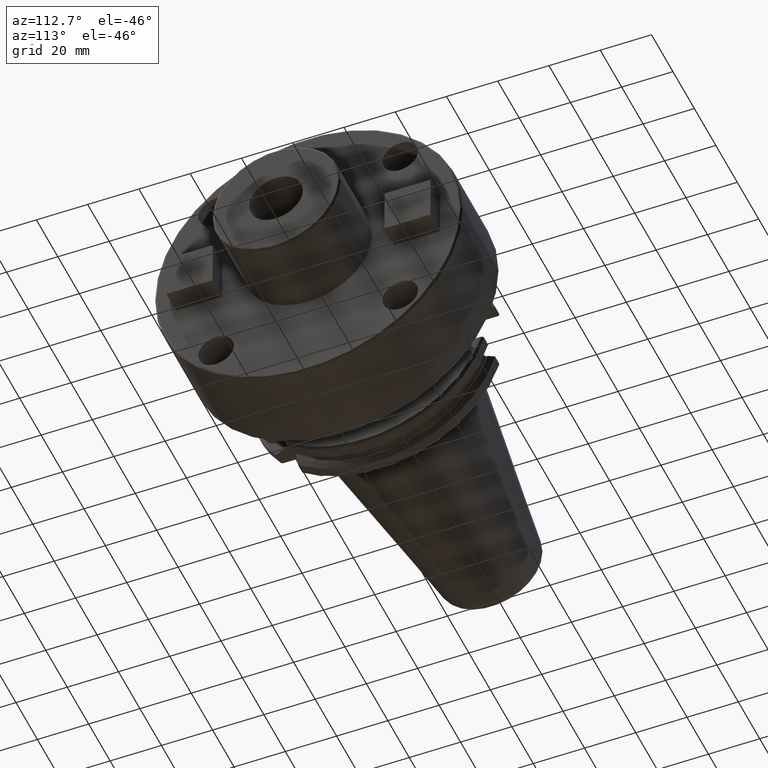
[diagram: clean part render]
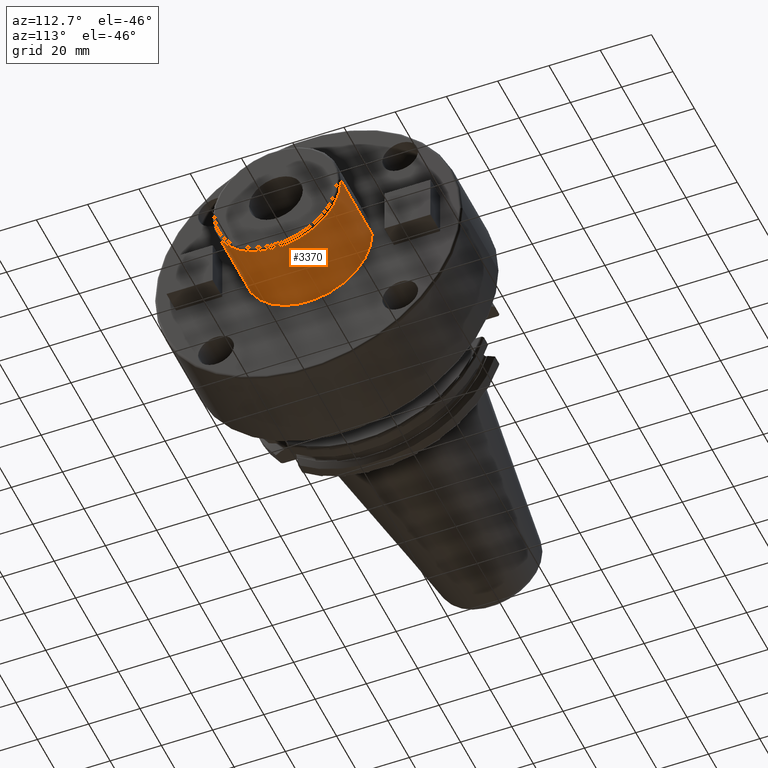
[diagram: same view with one face highlighted and labeled with its STEP entity id]
A machine part, auxiliary view. The second image highlights one B-rep face of the part: STEP entity #3370.
In plain terms, the highlighted cylindrical surface (partial cylindrical patch) has radius 25 mm, axis along (1, 0, 0).
Its self-contained STEP definition (entity closure, byte-faithful):
#1204=CARTESIAN_POINT('',(7.E1,0.E0,0.E0));
#1205=DIRECTION('',(-1.E0,0.E0,0.E0));
#1206=DIRECTION('',(0.E0,1.E0,0.E0));
#1207=AXIS2_PLACEMENT_3D('',#1204,#1205,#1206);
#1306=CARTESIAN_POINT('',(9.9E1,0.E0,0.E0));
#1307=DIRECTION('',(-1.E0,0.E0,0.E0));
#1308=DIRECTION('',(0.E0,1.E0,0.E0));
#1309=AXIS2_PLACEMENT_3D('',#1306,#1307,#1308);
#1311=DIRECTION('',(-1.E0,0.E0,4.938447581544E-14));
#1312=VECTOR('',#1311,2.9E1);
#1313=CARTESIAN_POINT('',(9.9E1,2.5E1,-1.430108720649E-12));
#1314=LINE('',#1313,#1312);
#1315=DIRECTION('',(-1.E0,0.E0,-4.974091809119E-14));
#1316=VECTOR('',#1315,2.9E1);
#1317=CARTESIAN_POINT('',(9.9E1,-2.5E1,1.440445546646E-12));
#1318=LINE('',#1317,#1316);
#1942=CARTESIAN_POINT('',(7.E1,2.5E1,0.E0));
#1943=CARTESIAN_POINT('',(7.E1,-2.5E1,0.E0));
#1944=VERTEX_POINT('',#1942);
#1945=VERTEX_POINT('',#1943);
#1964=CARTESIAN_POINT('',(9.9E1,2.5E1,0.E0));
#1965=CARTESIAN_POINT('',(9.9E1,-2.5E1,0.E0));
#1966=VERTEX_POINT('',#1964);
#1967=VERTEX_POINT('',#1965);
#3359=CARTESIAN_POINT('',(1.50025E1,0.E0,0.E0));
#3360=DIRECTION('',(1.E0,0.E0,0.E0));
#3361=DIRECTION('',(0.E0,-1.E0,0.E0));
#3362=AXIS2_PLACEMENT_3D('',#3359,#3360,#3361);
#3363=CYLINDRICAL_SURFACE('',#3362,2.5E1);
#3364=ORIENTED_EDGE('',*,*,#3350,.F.);
#3365=ORIENTED_EDGE('',*,*,#3325,.T.);
#3366=ORIENTED_EDGE('',*,*,#3266,.T.);
#3367=ORIENTED_EDGE('',*,*,#3322,.F.);
#3368=EDGE_LOOP('',(#3364,#3365,#3366,#3367));
#3369=FACE_OUTER_BOUND('',#3368,.F.);
#3370=ADVANCED_FACE('',(#3369),#3363,.T.);
#1208=CIRCLE('',#1207,2.5E1);
#1310=CIRCLE('',#1309,2.5E1);
#3266=EDGE_CURVE('',#1944,#1945,#1208,.T.);
#3322=EDGE_CURVE('',#1967,#1945,#1318,.T.);
#3325=EDGE_CURVE('',#1966,#1944,#1314,.T.);
#3350=EDGE_CURVE('',#1966,#1967,#1310,.T.);